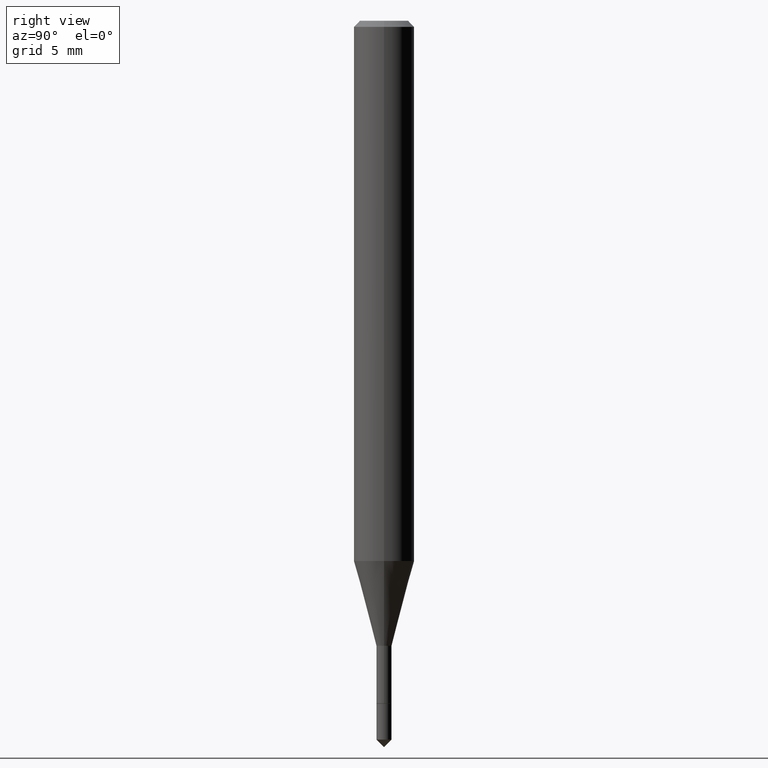
[diagram: clean part render]
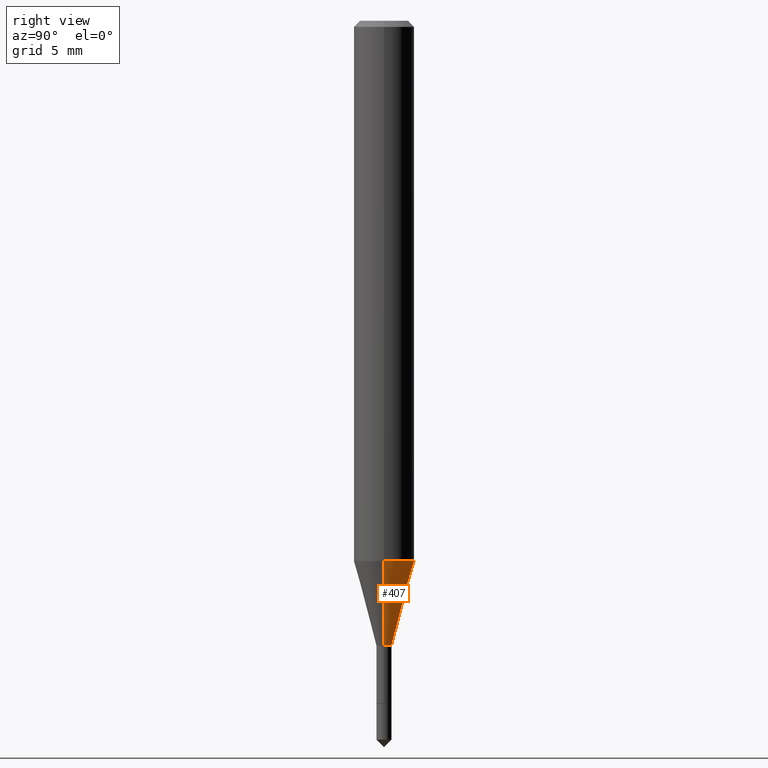
[diagram: same view with one face highlighted and labeled with its STEP entity id]
A machine part, right view. The second image highlights one B-rep face of the part: STEP entity #407.
In plain terms, the highlighted conical surface has half-angle 15 deg.
Its self-contained STEP definition (entity closure, byte-faithful):
#7 = CARTESIAN_POINT ( 'NONE',  ( 3.156122041262538513E-29, -4.506105815910965661E-15, -1.290600000000000414 ) ) ;
#11 = DIRECTION ( 'NONE',  ( -0.2588190451025212391, 5.211531920934549464E-15, 0.9659258262890679791 ) ) ;
#13 = DIRECTION ( 'NONE',  ( -2.445468806185136597E-29, 3.491481338843145583E-15, 1.000000000000000000 ) ) ;
#44 = CARTESIAN_POINT ( 'NONE',  ( -0.06250000000000015266, -3.450891514374587205E-15, -1.115566817125019927 ) ) ;
#76 = AXIS2_PLACEMENT_3D ( 'NONE', #80, #13, #235 ) ;
#80 = CARTESIAN_POINT ( 'NONE',  ( 2.728083852494474973E-29, -3.894980724224650610E-15, -1.115566817125019927 ) ) ;
#83 = DIRECTION ( 'NONE',  ( -2.445468806185136597E-29, 3.491481338843145583E-15, 1.000000000000000000 ) ) ;
#92 = AXIS2_PLACEMENT_3D ( 'NONE', #7, #83, #385 ) ;
#106 = CARTESIAN_POINT ( 'NONE',  ( 0.01559999999999998367, -4.615040033682871428E-15, -1.290600000000000414 ) ) ;
#118 = EDGE_CURVE ( 'NONE', #432, #463, #472, .T. ) ;
#137 = DIRECTION ( 'NONE',  ( 0.2588190451025212391, 1.565188264969622362E-15, 0.9659258262890679791 ) ) ;
#158 = VERTEX_POINT ( 'NONE', #293 ) ;
#159 = FACE_OUTER_BOUND ( 'NONE', #276, .T. ) ;
#201 = CARTESIAN_POINT ( 'NONE',  ( 3.156122041262538513E-29, -4.506105815910965661E-15, -1.290600000000000414 ) ) ;
#202 = DIRECTION ( 'NONE',  ( 1.000000000000000000, -6.982962677686290376E-15, 0.000000000000000000 ) ) ;
#234 = AXIS2_PLACEMENT_3D ( 'NONE', #201, #270, #202 ) ;
#235 = DIRECTION ( 'NONE',  ( 1.000000000000000000, -6.982962677686270655E-15, 0.000000000000000000 ) ) ;
#238 = CARTESIAN_POINT ( 'NONE',  ( 0.06250000000000015266, -4.331415891580043857E-15, -1.115566817125019927 ) ) ;
#240 = CIRCLE ( 'NONE', #76, 0.06250000000000013878 ) ;
#247 = VECTOR ( 'NONE', #137, 39.37007874015748854 ) ;
#270 = DIRECTION ( 'NONE',  ( -2.445468806185136597E-29, 3.491481338843145583E-15, 1.000000000000000000 ) ) ;
#276 = EDGE_LOOP ( 'NONE', ( #393, #313, #391, #282 ) ) ;
#282 = ORIENTED_EDGE ( 'NONE', *, *, #118, .F. ) ;
#293 = CARTESIAN_POINT ( 'NONE',  ( -0.01559999999999998367, -4.602829714726614675E-15, -1.290600000000000414 ) ) ;
#310 = CARTESIAN_POINT ( 'NONE',  ( -0.01559999999999998367, -4.395261149132390407E-15, -1.290600000000000414 ) ) ;
#313 = ORIENTED_EDGE ( 'NONE', *, *, #402, .T. ) ;
#329 = CONICAL_SURFACE ( 'NONE', #92, 0.01559999999999998367, 0.2617993877991499629 ) ;
#345 = LINE ( 'NONE', #310, #355 ) ;
#346 = EDGE_CURVE ( 'NONE', #463, #352, #240, .T. ) ;
#348 = CARTESIAN_POINT ( 'NONE',  ( 0.01559999999999998367, -4.615040033682871428E-15, -1.290600000000000414 ) ) ;
#352 = VERTEX_POINT ( 'NONE', #44 ) ;
#355 = VECTOR ( 'NONE', #11, 39.37007874015748854 ) ;
#385 = DIRECTION ( 'NONE',  ( 1.000000000000000000, -6.982962677686290376E-15, 0.000000000000000000 ) ) ;
#391 = ORIENTED_EDGE ( 'NONE', *, *, #346, .F. ) ;
#393 = ORIENTED_EDGE ( 'NONE', *, *, #422, .T. ) ;
#402 = EDGE_CURVE ( 'NONE', #158, #352, #345, .T. ) ;
#407 = ADVANCED_FACE ( 'NONE', ( #159 ), #329, .T. ) ;
#422 = EDGE_CURVE ( 'NONE', #432, #158, #465, .T. ) ;
#432 = VERTEX_POINT ( 'NONE', #348 ) ;
#463 = VERTEX_POINT ( 'NONE', #238 ) ;
#465 = CIRCLE ( 'NONE', #234, 0.01559999999999998367 ) ;
#472 = LINE ( 'NONE', #106, #247 ) ;